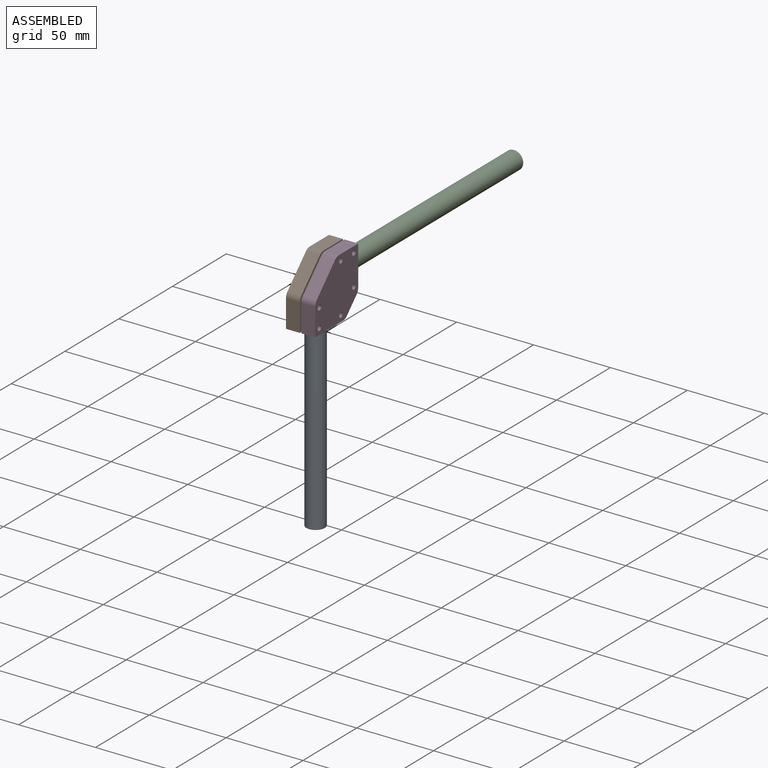
[diagram: assembled view]
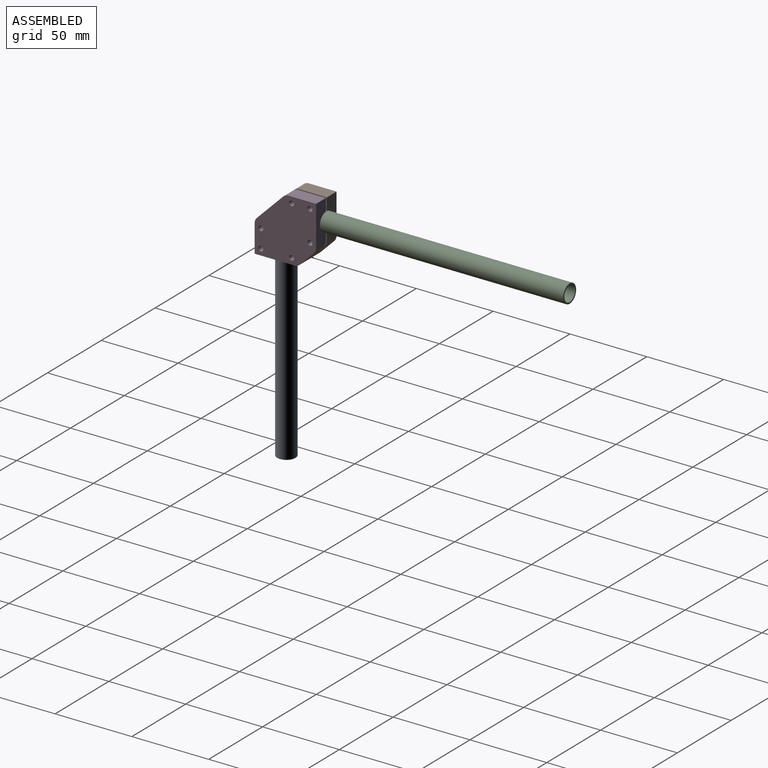
[diagram: assembled view, second angle]
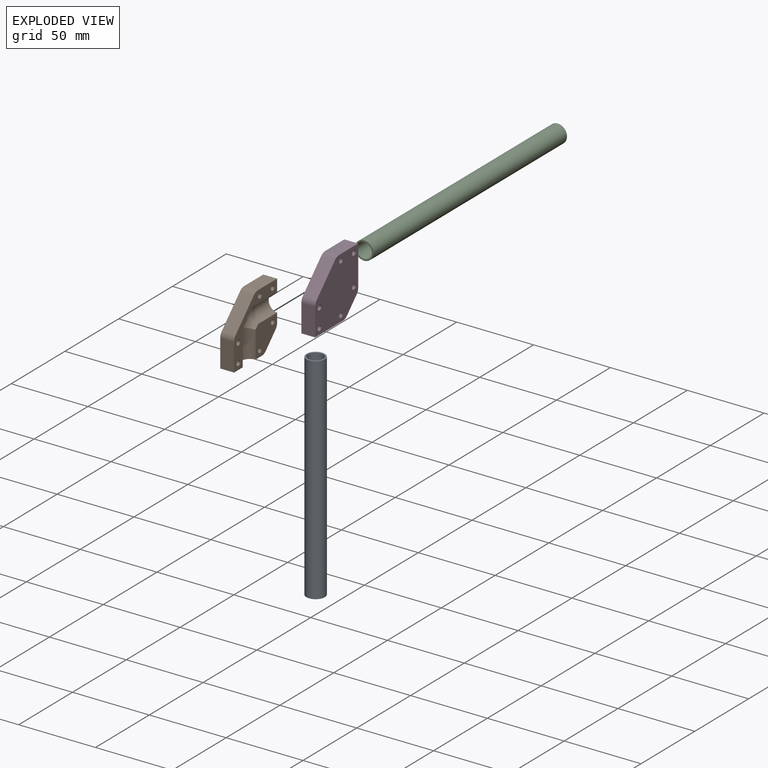
[diagram: exploded view]
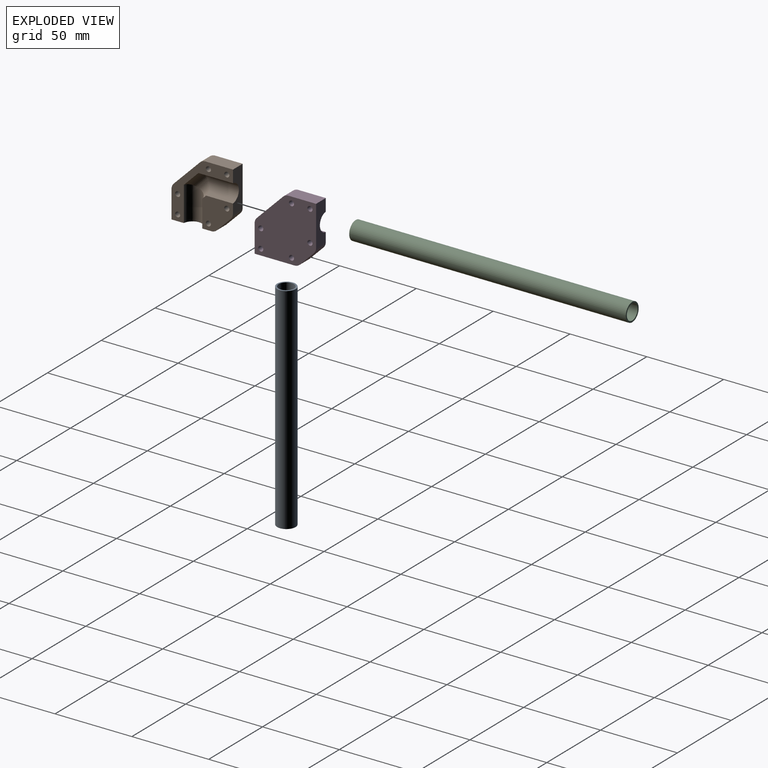
[diagram: exploded view, second angle]
ASSEMBLY  parts=4 mates=3
PART A: 4 faces, bbox 12x12x140 mm
  f0: cylinder r=5mm len=140mm, axis (0,0,1), area 4398.2mm2, adj f2,f3
  f1: cylinder r=6mm len=140mm, axis (0,0,1), area 5277.9mm2, adj f2,f3
  f2: plane 12x12mm, normal (0,0,-1), area 34.6mm2, adj f0,f1
  f3: plane 12x12mm, normal (0,0,1), area 34.6mm2, adj f0,f1
PART B: 22 faces, bbox 9x40x40 mm
  f0: plane 25.93x9mm, normal (0,0,-1), area 182.8mm2, adj f1,f5,f7,f8,f15,f20
  f1: plane 40x40mm, normal (-1,0,0), area 387.2mm2, adj f0,f2,f3,f4,f5,f9,f10,f11
  f2: plane 25.93x9mm, normal (0,1,0), area 182.8mm2, adj f1,f3,f7,f8,f17,f21
  f3: plane 17.93x9mm, normal (0,0,1), area 161.4mm2, adj f1,f2,f7,f18
  f4: plane 17.07x17.07mm, normal (0,-0.71,0.71), area 217.3mm2, adj f1,f7,f18,f19
  f5: plane 17.93x9mm, normal (0,-1,0), area 161.4mm2, adj f0,f1,f7,f19
  f6: plane 9.07x9.07mm, normal (0,0.71,-0.71), area 115.5mm2, adj f7,f8,f20,f21
  f7: plane 40x40mm, normal (1,0,0), area 1274.5mm2, adj f0,f2,f3,f4,f5,f6,f9,f10
  f8: plane 20.02x20.02mm, normal (-1,0,0), area 307.5mm2, adj f0,f2,f6,f12,f13,f15,f16,f17
  f9: cylinder r=1.65mm len=9mm, axis (-1,0,0), area 93.3mm2, adj f1,f7
  f10: cylinder r=1.65mm len=9mm, axis (-1,0,0), area 93.3mm2, adj f1,f7
  f11: cylinder r=1.65mm len=9mm, axis (-1,0,0), area 93.3mm2, adj f1,f7
  f12: cylinder r=1.65mm len=9mm, axis (-1,0,0), area 93.3mm2, adj f7,f8
  f13: cylinder r=1.65mm len=9mm, axis (-1,0,0), area 93.3mm2, adj f7,f8
  f14: cylinder r=1.65mm len=9mm, axis (-1,0,0), area 93.3mm2, adj f1,f7
  f15: cylinder r=6mm len=22.48mm, axis (0,0,-1), area 357mm2, adj f0,f1,f8,f16
  f16: cylinder r=6mm len=17.96mm, axis (0,-0.71,-0.71), area 151.4mm2, adj f1,f8,f15,f17
  f17: cylinder r=6mm len=22.48mm, axis (0,-1,0), area 357mm2, adj f1,f2,f8,f16
  f18: cylinder r=5mm len=9mm, axis (1,0,0), area 35.3mm2, adj f1,f3,f4,f7
  f19: cylinder r=5mm len=9mm, axis (-1,0,0), area 35.3mm2, adj f1,f4,f5,f7
  f20: cylinder r=5mm len=9mm, axis (-1,0,0), area 35.3mm2, adj f0,f6,f7,f8
  f21: cylinder r=5mm len=9mm, axis (-1,0,0), area 35.3mm2, adj f2,f6,f7,f8
PART C: 4 faces, bbox 12x180x12 mm
  f0: cylinder r=5mm len=180mm, axis (0,1,0), area 5654.9mm2, adj f2,f3
  f1: cylinder r=6mm len=180mm, axis (0,1,0), area 6785.8mm2, adj f2,f3
  f2: plane 12x12mm, normal (0,-1,0), area 34.6mm2, adj f0,f1
  f3: plane 12x12mm, normal (0,1,0), area 34.6mm2, adj f0,f1
PART D: same geometry as B
PLACE A t=(-9.81,-30.35,-23.25)mm
PLACE B rot(axis=(0,-0.71,0.71),180deg) t=(-9.81,-241.35,-235.86)mm
PLACE C t=(-9.81,-31.96,-24.86)mm fixed
PLACE D t=(-9.81,-30.35,-24.86)mm
MATE fastened C.f0 <-> D.f17  axis (0,-1,0) through (-9.81,-226.96,-34.86)mm
MATE fastened C.f0 <-> B.f15  axis (0,1,0) through (-9.81,-226.96,-34.86)mm
MATE fastened A.f0 <-> D.f15  axis (0,0,1) through (-9.81,-231.35,-39.25)mm
